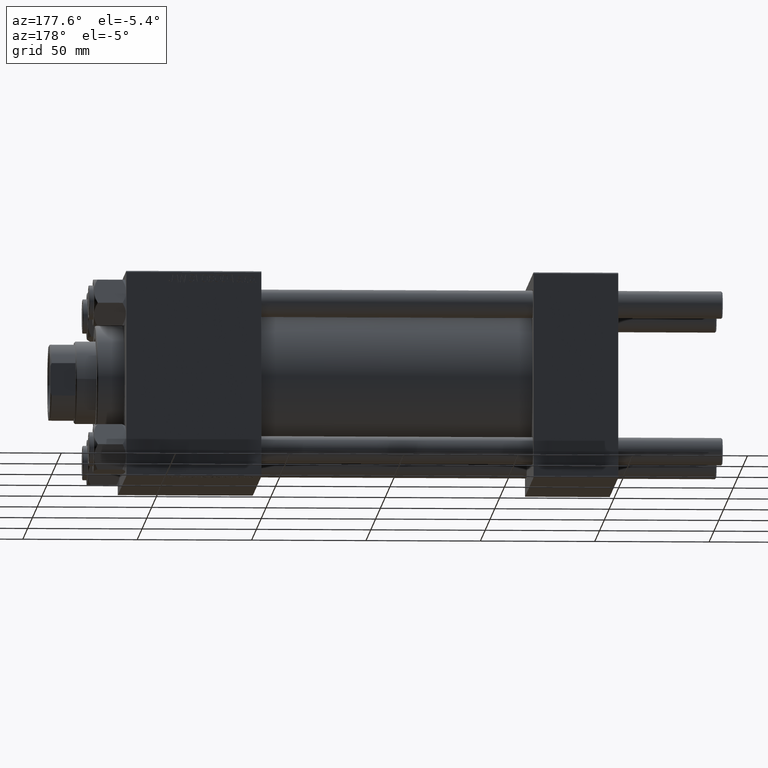
[diagram: clean part render]
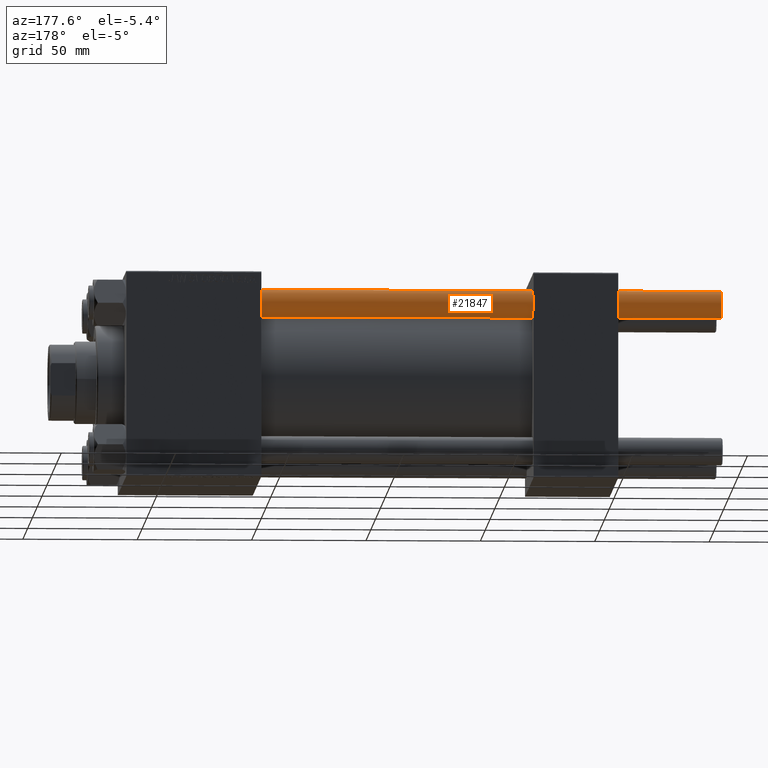
[diagram: same view with one face highlighted and labeled with its STEP entity id]
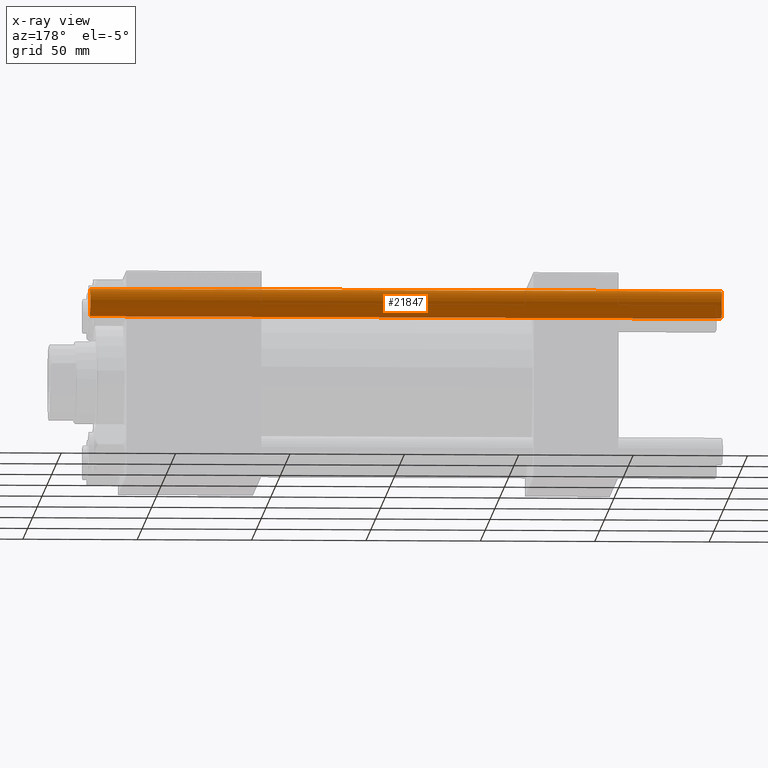
[diagram: x-ray of the same camera — body ghosted, the highlighted face saturated]
A machine part, auxiliary view. The second image highlights one B-rep face of the part: STEP entity #21847.
The next image is the same camera in x-ray: the body ghosted, the highlighted face saturated — about 0% of this face is hidden behind the body in this view.
In plain terms, the highlighted cylindrical surface (edge-blend (fillet) strip) has radius 6 mm, axis along (-1, -0, -0).
Its self-contained STEP definition (entity closure, byte-faithful):
#93 = ORIENTED_EDGE ( 'NONE', *, *, #9425, .T. ) ;
#851 = CARTESIAN_POINT ( 'NONE',  ( -6.000000000000000888, 0.000000000000000000, 277.0000000000000000 ) ) ;
#2414 = CARTESIAN_POINT ( 'NONE',  ( 0.000000000000000000, 0.000000000000000000, 0.5000000000000559552 ) ) ;
#3635 = VERTEX_POINT ( 'NONE', #12102 ) ;
#4992 = DIRECTION ( 'NONE',  ( 0.000000000000000000, 0.000000000000000000, -1.000000000000000000 ) ) ;
#5236 = EDGE_LOOP ( 'NONE', ( #93, #28698, #48688, #27755 ) ) ;
#6382 = EDGE_CURVE ( 'NONE', #28541, #3635, #17950, .T. ) ;
#7923 = DIRECTION ( 'NONE',  ( -0.000000000000000000, -0.000000000000000000, -1.000000000000000000 ) ) ;
#8661 = EDGE_CURVE ( 'NONE', #45629, #3635, #12206, .T. ) ;
#8887 = CARTESIAN_POINT ( 'NONE',  ( 6.000000000000000888, 7.347880794884120722E-16, 0.5000000000000559552 ) ) ;
#9425 = EDGE_CURVE ( 'NONE', #45629, #44784, #47886, .T. ) ;
#9501 = DIRECTION ( 'NONE',  ( 1.000000000000000000, 0.000000000000000000, 0.000000000000000000 ) ) ;
#9552 = CARTESIAN_POINT ( 'NONE',  ( 0.000000000000000000, 0.000000000000000000, 276.5000000000000000 ) ) ;
#11751 = CARTESIAN_POINT ( 'NONE',  ( 6.000000000000000888, 7.347880794884120722E-16, 277.0000000000000000 ) ) ;
#11978 = FACE_OUTER_BOUND ( 'NONE', #5236, .T. ) ;
#12102 = CARTESIAN_POINT ( 'NONE',  ( -6.000000000000000888, 0.000000000000000000, 0.5000000000000559552 ) ) ;
#12206 = LINE ( 'NONE', #851, #18021 ) ;
#13327 = CARTESIAN_POINT ( 'NONE',  ( -6.000000000000000888, 0.000000000000000000, 276.5000000000000000 ) ) ;
#14759 = CYLINDRICAL_SURFACE ( 'NONE', #40110, 6.000000000000000888 ) ;
#17950 = CIRCLE ( 'NONE', #21985, 6.000000000000000888 ) ;
#18021 = VECTOR ( 'NONE', #7923, 1000.000000000000000 ) ;
#21847 = ADVANCED_FACE ( 'NONE', ( #11978 ), #14759, .T. ) ;
#21985 = AXIS2_PLACEMENT_3D ( 'NONE', #2414, #40795, #9501 ) ;
#26391 = DIRECTION ( 'NONE',  ( -0.000000000000000000, -0.000000000000000000, -1.000000000000000000 ) ) ;
#26899 = DIRECTION ( 'NONE',  ( -0.000000000000000000, -0.000000000000000000, -1.000000000000000000 ) ) ;
#27755 = ORIENTED_EDGE ( 'NONE', *, *, #8661, .F. ) ;
#28541 = VERTEX_POINT ( 'NONE', #8887 ) ;
#28698 = ORIENTED_EDGE ( 'NONE', *, *, #29017, .T. ) ;
#29017 = EDGE_CURVE ( 'NONE', #44784, #28541, #43068, .T. ) ;
#30173 = CARTESIAN_POINT ( 'NONE',  ( 0.000000000000000000, 0.000000000000000000, 277.0000000000000000 ) ) ;
#34175 = AXIS2_PLACEMENT_3D ( 'NONE', #9552, #4992, #43913 ) ;
#36560 = CARTESIAN_POINT ( 'NONE',  ( 6.000000000000000888, 7.347880794884120722E-16, 276.5000000000000000 ) ) ;
#38001 = DIRECTION ( 'NONE',  ( -1.000000000000000000, 0.000000000000000000, 0.000000000000000000 ) ) ;
#40110 = AXIS2_PLACEMENT_3D ( 'NONE', #30173, #26391, #38001 ) ;
#40795 = DIRECTION ( 'NONE',  ( -0.000000000000000000, -0.000000000000000000, 1.000000000000000000 ) ) ;
#43068 = LINE ( 'NONE', #11751, #49308 ) ;
#43913 = DIRECTION ( 'NONE',  ( 1.000000000000000000, 0.000000000000000000, 0.000000000000000000 ) ) ;
#44784 = VERTEX_POINT ( 'NONE', #36560 ) ;
#45629 = VERTEX_POINT ( 'NONE', #13327 ) ;
#47886 = CIRCLE ( 'NONE', #34175, 6.000000000000000888 ) ;
#48688 = ORIENTED_EDGE ( 'NONE', *, *, #6382, .T. ) ;
#49308 = VECTOR ( 'NONE', #26899, 1000.000000000000000 ) ;